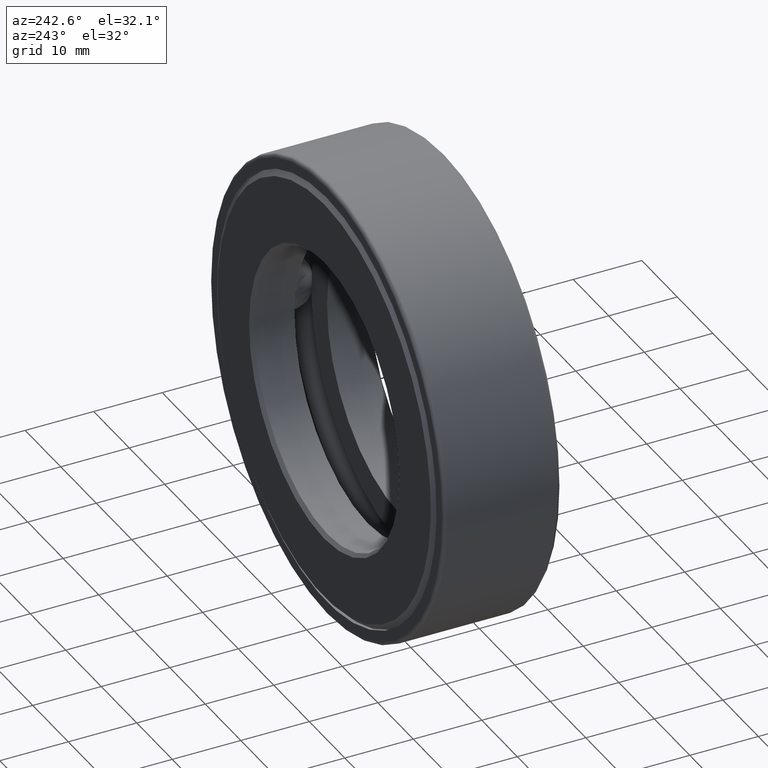
[diagram: clean part render]
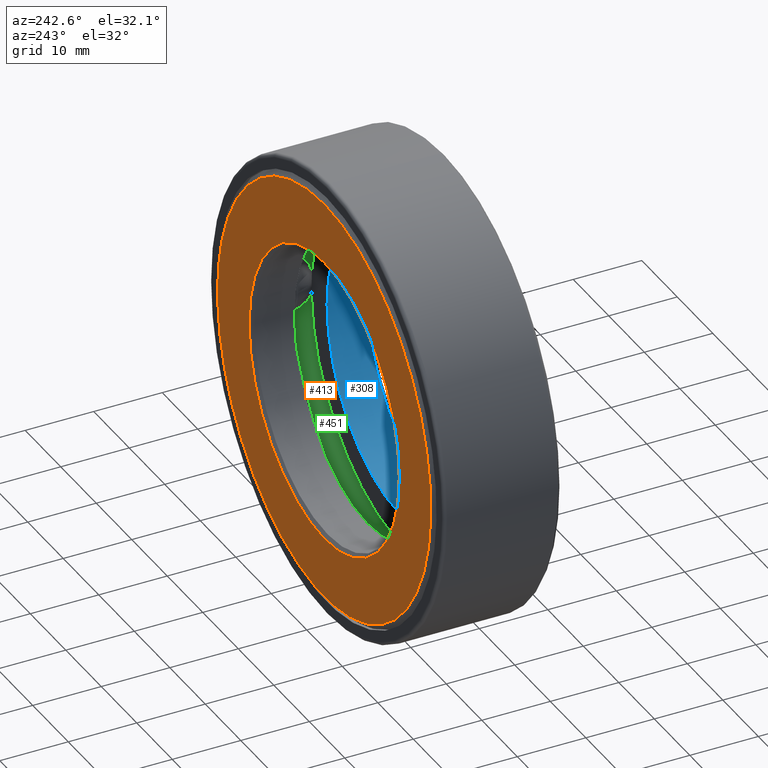
[diagram: same view with three faces highlighted in distinct colors, each labeled with its STEP entity id]
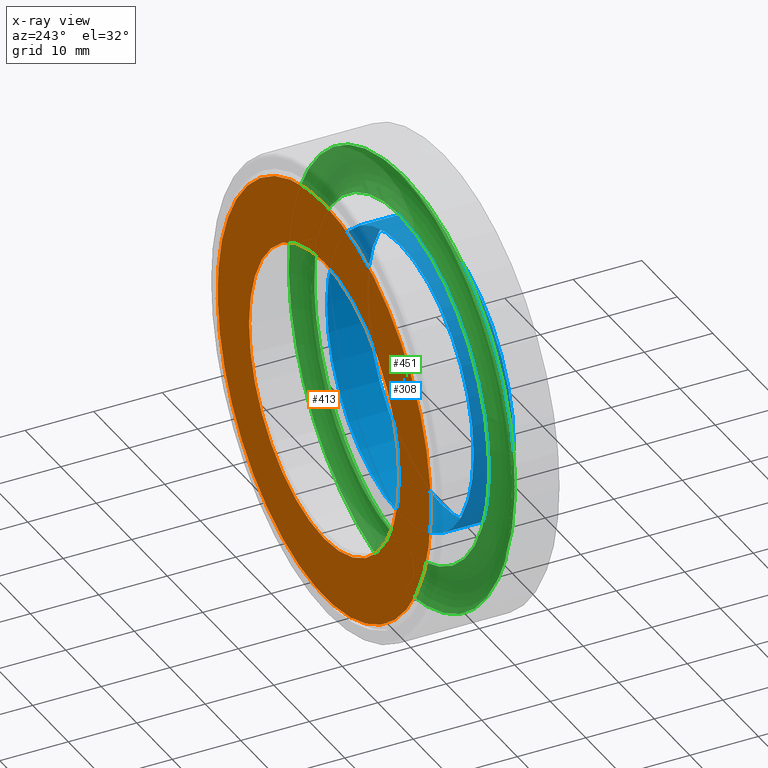
[diagram: x-ray of the same camera — body ghosted, the three highlighted faces saturated]
A machine part, auxiliary view with three faces highlighted in distinct colors.
The next image is the same camera in x-ray (body ghosted, the three faces saturated) — at least one of them is partly hidden behind the body in this view.
Their STEP definitions:

[orange] entity #413 — the highlighted planar face has unit normal (-0, 1, 0).
#39 = AXIS2_PLACEMENT_3D ( 'NONE', #284, #601, #324 ) ;
#45 = AXIS2_PLACEMENT_3D ( 'NONE', #511, #227, #553 ) ;
#123 = ORIENTED_EDGE ( 'NONE', *, *, #244, .T. ) ;
#130 = AXIS2_PLACEMENT_3D ( 'NONE', #561, #247, #199 ) ;
#133 = PLANE ( 'NONE',  #130 ) ;
#199 = DIRECTION ( 'NONE',  ( 0.0000000000000000000, 0.0000000000000000000, 1.000000000000000000 ) ) ;
#227 = DIRECTION ( 'NONE',  ( -0.0000000000000000000, 1.000000000000000000, -0.0000000000000000000 ) ) ;
#230 = CIRCLE ( 'NONE', #39, 0.8325000000000003500 ) ;
#244 = EDGE_CURVE ( 'NONE', #564, #564, #335, .T. ) ;
#246 = ORIENTED_EDGE ( 'NONE', *, *, #400, .F. ) ;
#247 = DIRECTION ( 'NONE',  ( -0.0000000000000000000, 1.000000000000000000, 0.0000000000000000000 ) ) ;
#274 = EDGE_LOOP ( 'NONE', ( #123 ) ) ;
#284 = CARTESIAN_POINT ( 'NONE',  ( 0.0000000000000000000, 0.6875000000000000000, 0.0000000000000000000 ) ) ;
#324 = DIRECTION ( 'NONE',  ( 0.0000000000000000000, 0.0000000000000000000, 1.000000000000000000 ) ) ;
#335 = CIRCLE ( 'NONE', #45, 1.181875000000000000 ) ;
#345 = CARTESIAN_POINT ( 'NONE',  ( 0.0000000000000000000, 0.6875000000000000000, 0.8325000000000003500 ) ) ;
#400 = EDGE_CURVE ( 'NONE', #543, #543, #230, .T. ) ;
#413 = ADVANCED_FACE ( 'NONE', ( #544, #420 ), #133, .T. ) ;
#420 = FACE_BOUND ( 'NONE', #474, .T. ) ;
#474 = EDGE_LOOP ( 'NONE', ( #246 ) ) ;
#486 = CARTESIAN_POINT ( 'NONE',  ( 0.0000000000000000000, 0.6875000000000000000, 1.181875000000000000 ) ) ;
#511 = CARTESIAN_POINT ( 'NONE',  ( 0.0000000000000000000, 0.6875000000000000000, 0.0000000000000000000 ) ) ;
#543 = VERTEX_POINT ( 'NONE', #345 ) ;
#544 = FACE_OUTER_BOUND ( 'NONE', #274, .T. ) ;
#553 = DIRECTION ( 'NONE',  ( 0.0000000000000000000, 0.0000000000000000000, 1.000000000000000000 ) ) ;
#561 = CARTESIAN_POINT ( 'NONE',  ( 0.0000000000000000000, 0.6875000000000000000, 0.0000000000000000000 ) ) ;
#564 = VERTEX_POINT ( 'NONE', #486 ) ;
#601 = DIRECTION ( 'NONE',  ( -0.0000000000000000000, 1.000000000000000000, -0.0000000000000000000 ) ) ;

[blue] entity #308 — the highlighted cylindrical surface (bore or boss wall) has radius 20.6375 mm, axis along (-0, 1, -0).
#11 = FACE_OUTER_BOUND ( 'NONE', #507, .T. ) ;
#23 = ORIENTED_EDGE ( 'NONE', *, *, #107, .F. ) ;
#41 = CIRCLE ( 'NONE', #395, 0.8125000000000001100 ) ;
#43 = EDGE_LOOP ( 'NONE', ( #23 ) ) ;
#47 = DIRECTION ( 'NONE',  ( 0.0000000000000000000, 0.0000000000000000000, 1.000000000000000000 ) ) ;
#58 = CARTESIAN_POINT ( 'NONE',  ( 0.0000000000000000000, 0.02000000000000019800, 0.8125000000000000000 ) ) ;
#74 = FACE_OUTER_BOUND ( 'NONE', #43, .T. ) ;
#87 = CARTESIAN_POINT ( 'NONE',  ( 0.0000000000000000000, 0.0000000000000000000, 0.0000000000000000000 ) ) ;
#93 = ORIENTED_EDGE ( 'NONE', *, *, #384, .T. ) ;
#107 = EDGE_CURVE ( 'NONE', #334, #334, #551, .T. ) ;
#117 = DIRECTION ( 'NONE',  ( -0.0000000000000000000, 1.000000000000000000, -0.0000000000000000000 ) ) ;
#131 = DIRECTION ( 'NONE',  ( 0.0000000000000000000, 0.0000000000000000000, 1.000000000000000000 ) ) ;
#190 = CARTESIAN_POINT ( 'NONE',  ( 0.0000000000000000000, 0.2499999999999999200, 0.0000000000000000000 ) ) ;
#240 = DIRECTION ( 'NONE',  ( -0.0000000000000000000, 1.000000000000000000, -0.0000000000000000000 ) ) ;
#245 = CYLINDRICAL_SURFACE ( 'NONE', #593, 0.8125000000000001100 ) ;
#266 = CARTESIAN_POINT ( 'NONE',  ( 0.0000000000000000000, 0.02000000000000019800, 0.0000000000000000000 ) ) ;
#293 = AXIS2_PLACEMENT_3D ( 'NONE', #266, #117, #302 ) ;
#302 = DIRECTION ( 'NONE',  ( 0.0000000000000000000, 0.0000000000000000000, 1.000000000000000000 ) ) ;
#308 = ADVANCED_FACE ( 'NONE', ( #74, #11 ), #245, .F. ) ;
#334 = VERTEX_POINT ( 'NONE', #58 ) ;
#384 = EDGE_CURVE ( 'NONE', #597, #597, #41, .T. ) ;
#395 = AXIS2_PLACEMENT_3D ( 'NONE', #190, #240, #131 ) ;
#476 = DIRECTION ( 'NONE',  ( -0.0000000000000000000, 1.000000000000000000, -0.0000000000000000000 ) ) ;
#496 = CARTESIAN_POINT ( 'NONE',  ( 0.0000000000000000000, 0.2499999999999999200, 0.8125000000000001100 ) ) ;
#507 = EDGE_LOOP ( 'NONE', ( #93 ) ) ;
#551 = CIRCLE ( 'NONE', #293, 0.8125000000000000000 ) ;
#593 = AXIS2_PLACEMENT_3D ( 'NONE', #87, #476, #47 ) ;
#597 = VERTEX_POINT ( 'NONE', #496 ) ;

[green] entity #451 — the highlighted toroidal blend (fillet) surface has major radius 28.2353 mm and minor (blend) radius 3.9688 mm.
#21 = FACE_OUTER_BOUND ( 'NONE', #50, .T. ) ;
#40 = VERTEX_POINT ( 'NONE', #207 ) ;
#50 = EDGE_LOOP ( 'NONE', ( #414 ) ) ;
#57 = DIRECTION ( 'NONE',  ( 0.0000000000000000000, 0.0000000000000000000, 1.000000000000000000 ) ) ;
#138 = CARTESIAN_POINT ( 'NONE',  ( 0.0000000000000000000, 0.2499999999999998900, 0.0000000000000000000 ) ) ;
#143 = AXIS2_PLACEMENT_3D ( 'NONE', #510, #515, #361 ) ;
#155 = EDGE_CURVE ( 'NONE', #444, #444, #521, .T. ) ;
#194 = EDGE_LOOP ( 'NONE', ( #366 ) ) ;
#207 = CARTESIAN_POINT ( 'NONE',  ( 0.0000000000000000000, 0.2499999999999998900, 0.9866250000000003100 ) ) ;
#332 = AXIS2_PLACEMENT_3D ( 'NONE', #138, #428, #532 ) ;
#336 = DIRECTION ( 'NONE',  ( -0.0000000000000000000, 1.000000000000000000, -0.0000000000000000000 ) ) ;
#347 = CARTESIAN_POINT ( 'NONE',  ( 0.0000000000000000000, 0.2499999999999998300, 1.236625000000000100 ) ) ;
#354 = AXIS2_PLACEMENT_3D ( 'NONE', #481, #336, #57 ) ;
#361 = DIRECTION ( 'NONE',  ( 0.0000000000000000000, 0.0000000000000000000, 1.000000000000000000 ) ) ;
#366 = ORIENTED_EDGE ( 'NONE', *, *, #531, .F. ) ;
#391 = TOROIDAL_SURFACE ( 'NONE', #354, 1.111625000000000100, 0.1562500000000000000 ) ;
#414 = ORIENTED_EDGE ( 'NONE', *, *, #155, .T. ) ;
#428 = DIRECTION ( 'NONE',  ( -0.0000000000000000000, 1.000000000000000000, -0.0000000000000000000 ) ) ;
#431 = CIRCLE ( 'NONE', #332, 0.9866250000000003100 ) ;
#444 = VERTEX_POINT ( 'NONE', #347 ) ;
#451 = ADVANCED_FACE ( 'NONE', ( #558, #21 ), #391, .F. ) ;
#481 = CARTESIAN_POINT ( 'NONE',  ( 0.0000000000000000000, 0.3437500000000000000, 0.0000000000000000000 ) ) ;
#510 = CARTESIAN_POINT ( 'NONE',  ( 0.0000000000000000000, 0.2499999999999998300, 0.0000000000000000000 ) ) ;
#515 = DIRECTION ( 'NONE',  ( -0.0000000000000000000, 1.000000000000000000, -0.0000000000000000000 ) ) ;
#521 = CIRCLE ( 'NONE', #143, 1.236625000000000100 ) ;
#531 = EDGE_CURVE ( 'NONE', #40, #40, #431, .T. ) ;
#532 = DIRECTION ( 'NONE',  ( 0.0000000000000000000, 0.0000000000000000000, 1.000000000000000000 ) ) ;
#558 = FACE_OUTER_BOUND ( 'NONE', #194, .T. ) ;